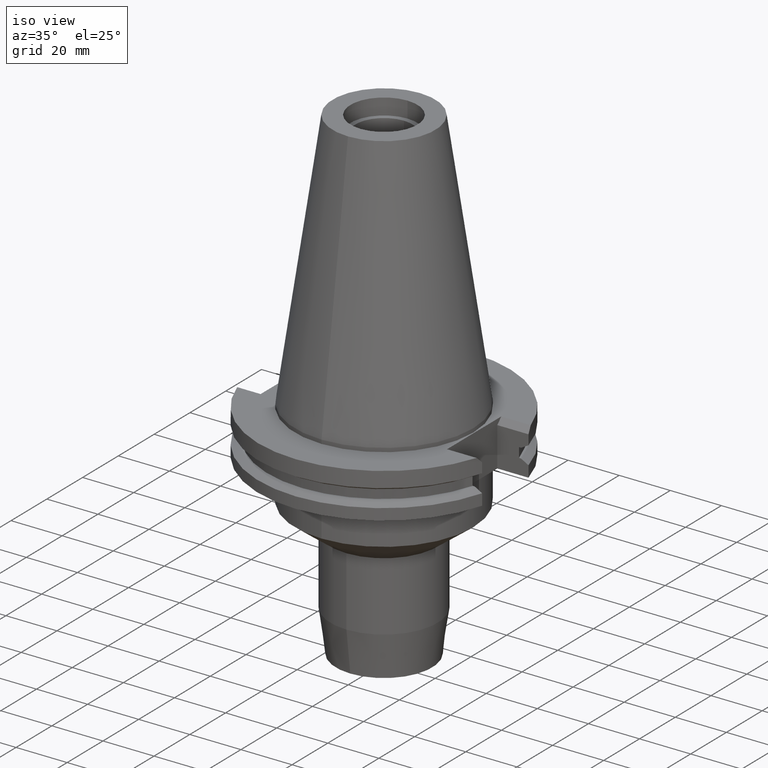
[diagram: clean part render]
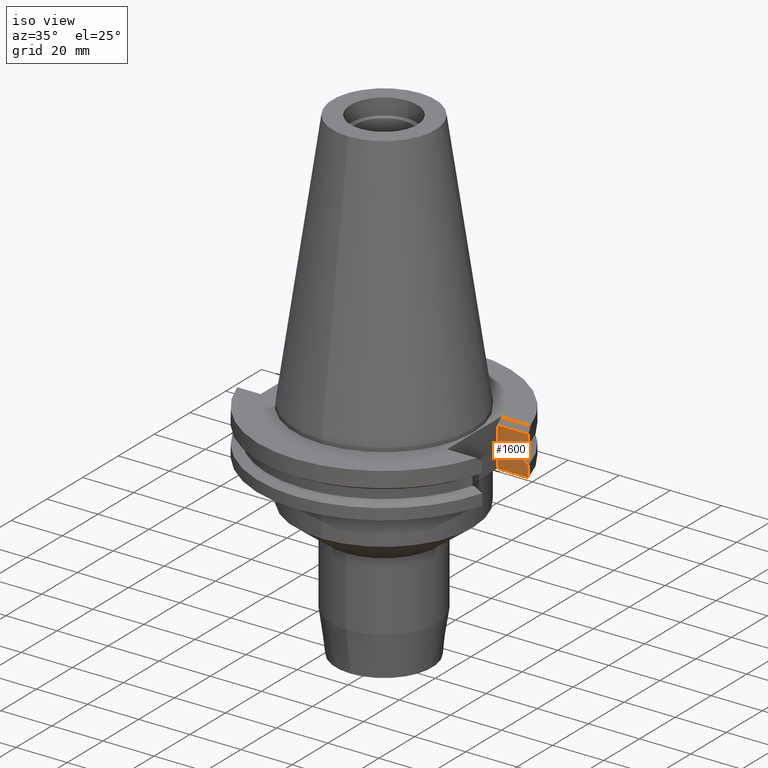
[diagram: same view with one face highlighted and labeled with its STEP entity id]
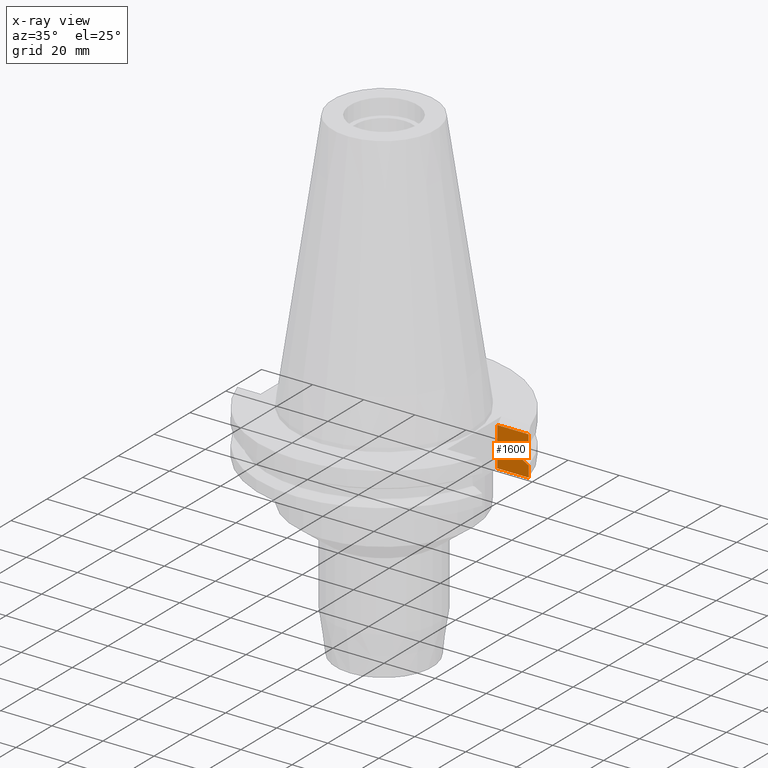
[diagram: x-ray of the same camera — body ghosted, the highlighted face saturated]
A machine part, iso view. The second image highlights one B-rep face of the part: STEP entity #1600.
The next image is the same camera in x-ray: the body ghosted, the highlighted face saturated — about 0% of this face is hidden behind the body in this view.
In plain terms, the highlighted planar face has unit normal (0, 1, 0).
Its self-contained STEP definition (entity closure, byte-faithful):
#198=DIRECTION('',(0.E0,0.E0,-1.E0));
#199=VECTOR('',#198,1.535E1);
#200=CARTESIAN_POINT('',(3.527E1,1.2955E1,-3.7E0));
#201=LINE('',#200,#199);
#205=DIRECTION('',(1.E0,1.469781941986E-14,0.E0));
#206=VECTOR('',#205,1.220671146204E1);
#207=CARTESIAN_POINT('',(3.527E1,1.2955E1,-1.905E1));
#208=LINE('',#207,#206);
#267=DIRECTION('',(1.E0,-3.905892970804E-13,4.036089403164E-13));
#268=VECTOR('',#267,8.186200530381E-1);
#269=CARTESIAN_POINT('',(4.376795631509E1,1.2955E1,-1.30475E1));
#270=LINE('',#269,#268);
#282=DIRECTION('',(-1.E0,-1.469781941986E-14,0.E0));
#283=VECTOR('',#282,1.220671146204E1);
#284=CARTESIAN_POINT('',(4.747671146204E1,1.2955E1,-3.7E0));
#285=LINE('',#284,#283);
#296=DIRECTION('',(-2.622645846769E-13,-3.551499584166E-14,1.E0));
#297=VECTOR('',#296,3.901333230925E0);
#298=CARTESIAN_POINT('',(4.747671146204E1,1.2955E1,-7.601333230925E0));
#299=LINE('',#298,#297);
#383=DIRECTION('',(1.341459893288E-13,4.808244798230E-14,1.E0));
#384=VECTOR('',#383,4.396333230921E0);
#385=CARTESIAN_POINT('',(4.747671146204E1,1.2955E1,-1.905E1));
#386=LINE('',#385,#384);
#397=CARTESIAN_POINT('',(4.747671146204E1,1.2955E1,-1.465366676908E1));
#398=CARTESIAN_POINT('',(4.715587471991E1,1.2955E1,-1.447496507405E1));
#399=CARTESIAN_POINT('',(4.651400683737E1,1.2955E1,-1.411772345786E1));
#400=CARTESIAN_POINT('',(4.555063729228E1,1.2955E1,-1.358231688076E1));
#401=CARTESIAN_POINT('',(4.490800201650E1,1.2955E1,-1.322570517653E1));
#402=CARTESIAN_POINT('',(4.458657636813E1,1.2955E1,-1.30475E1));
#472=DIRECTION('',(0.E0,0.E0,1.E0));
#473=VECTOR('',#472,3.84E0);
#474=CARTESIAN_POINT('',(4.376795631509E1,1.2955E1,-1.30475E1));
#475=LINE('',#474,#473);
#486=DIRECTION('',(1.E0,-2.907720322708E-13,-1.019872053487E-12));
#487=VECTOR('',#486,8.186200530384E-1);
#488=CARTESIAN_POINT('',(4.376795631509E1,1.2955E1,-9.2075E0));
#489=LINE('',#488,#487);
#525=CARTESIAN_POINT('',(4.458657636813E1,1.2955E1,-9.207500000001E0));
#526=CARTESIAN_POINT('',(4.490800201650E1,1.2955E1,-9.029294823467E0));
#527=CARTESIAN_POINT('',(4.555063729230E1,1.2955E1,-8.672683119231E0));
#528=CARTESIAN_POINT('',(4.651400683739E1,1.2955E1,-8.137276542127E0));
#529=CARTESIAN_POINT('',(4.715587471992E1,1.2955E1,-7.780034925951E0));
#530=CARTESIAN_POINT('',(4.747671146204E1,1.2955E1,-7.601333230925E0));
#1248=CARTESIAN_POINT('',(3.527E1,1.2955E1,-1.905E1));
#1250=VERTEX_POINT('',#1248);
#1254=CARTESIAN_POINT('',(3.527E1,1.2955E1,-3.7E0));
#1255=VERTEX_POINT('',#1254);
#1256=CARTESIAN_POINT('',(4.747671146204E1,1.2955E1,-1.905E1));
#1257=VERTEX_POINT('',#1256);
#1332=CARTESIAN_POINT('',(4.747671146204E1,1.2955E1,-3.7E0));
#1333=VERTEX_POINT('',#1332);
#1334=CARTESIAN_POINT('',(4.747671146204E1,1.2955E1,-7.601333230925E0));
#1335=VERTEX_POINT('',#1334);
#1336=VERTEX_POINT('',#525);
#1337=CARTESIAN_POINT('',(4.376795631509E1,1.2955E1,-9.2075E0));
#1338=VERTEX_POINT('',#1337);
#1339=CARTESIAN_POINT('',(4.376795631509E1,1.2955E1,-1.30475E1));
#1340=VERTEX_POINT('',#1339);
#1341=CARTESIAN_POINT('',(4.458657636813E1,1.2955E1,-1.30475E1));
#1342=VERTEX_POINT('',#1341);
#1343=VERTEX_POINT('',#397);
#1575=CARTESIAN_POINT('',(3.527E1,1.2955E1,-1.905E1));
#1576=DIRECTION('',(0.E0,1.E0,0.E0));
#1577=DIRECTION('',(0.E0,0.E0,1.E0));
#1578=AXIS2_PLACEMENT_3D('',#1575,#1576,#1577);
#1579=PLANE('',#1578);
#1580=ORIENTED_EDGE('',*,*,#1548,.F.);
#1581=ORIENTED_EDGE('',*,*,#1537,.F.);
#1583=ORIENTED_EDGE('',*,*,#1582,.F.);
#1585=ORIENTED_EDGE('',*,*,#1584,.F.);
#1587=ORIENTED_EDGE('',*,*,#1586,.F.);
#1589=ORIENTED_EDGE('',*,*,#1588,.F.);
#1591=ORIENTED_EDGE('',*,*,#1590,.F.);
#1593=ORIENTED_EDGE('',*,*,#1592,.T.);
#1595=ORIENTED_EDGE('',*,*,#1594,.F.);
#1597=ORIENTED_EDGE('',*,*,#1596,.F.);
#1598=EDGE_LOOP('',(#1580,#1581,#1583,#1585,#1587,#1589,#1591,#1593,#1595,
#1597));
#1599=FACE_OUTER_BOUND('',#1598,.F.);
#403=B_SPLINE_CURVE_WITH_KNOTS('',3,(#397,#398,#399,#400,#401,#402),
.UNSPECIFIED.,.F.,.F.,(4,1,1,4),(0.E0,3.333333333333E-1,6.666666666667E-1,1.E0),
.UNSPECIFIED.);
#531=B_SPLINE_CURVE_WITH_KNOTS('',3,(#525,#526,#527,#528,#529,#530),
.UNSPECIFIED.,.F.,.F.,(4,1,1,4),(0.E0,3.333333333333E-1,6.666666666667E-1,1.E0),
.UNSPECIFIED.);
#1537=EDGE_CURVE('',#1255,#1250,#201,.T.);
#1548=EDGE_CURVE('',#1250,#1257,#208,.T.);
#1582=EDGE_CURVE('',#1333,#1255,#285,.T.);
#1584=EDGE_CURVE('',#1335,#1333,#299,.T.);
#1586=EDGE_CURVE('',#1336,#1335,#531,.T.);
#1588=EDGE_CURVE('',#1338,#1336,#489,.T.);
#1590=EDGE_CURVE('',#1340,#1338,#475,.T.);
#1592=EDGE_CURVE('',#1340,#1342,#270,.T.);
#1594=EDGE_CURVE('',#1343,#1342,#403,.T.);
#1596=EDGE_CURVE('',#1257,#1343,#386,.T.);
#1600=ADVANCED_FACE('',(#1599),#1579,.F.);